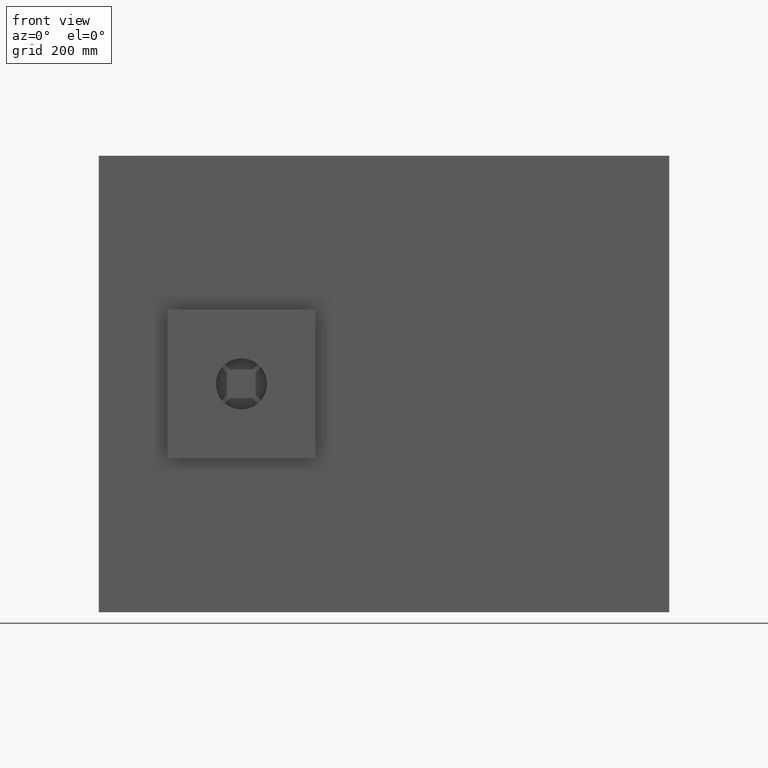
[diagram: clean part render]
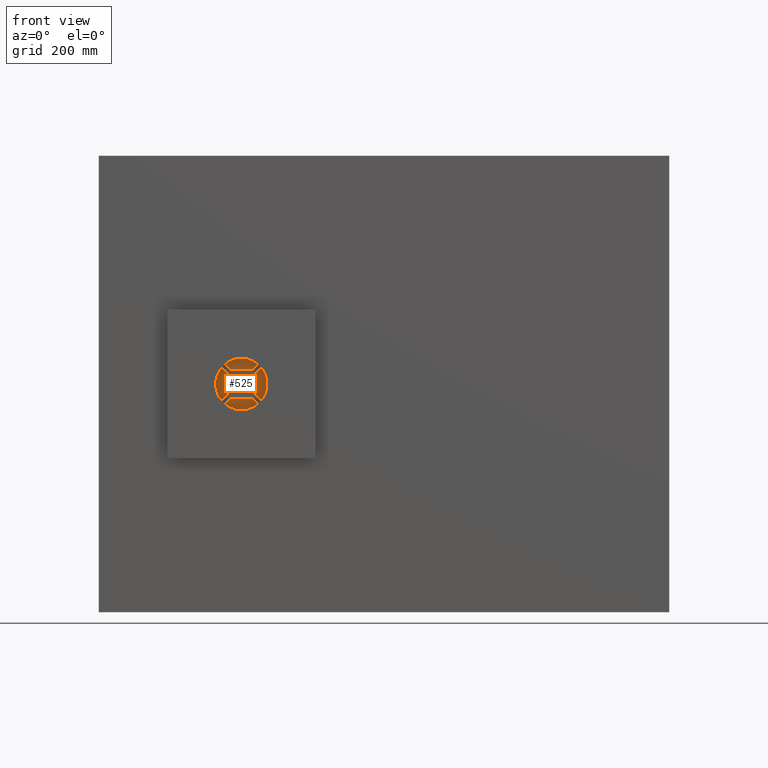
[diagram: same view with one face highlighted and labeled with its STEP entity id]
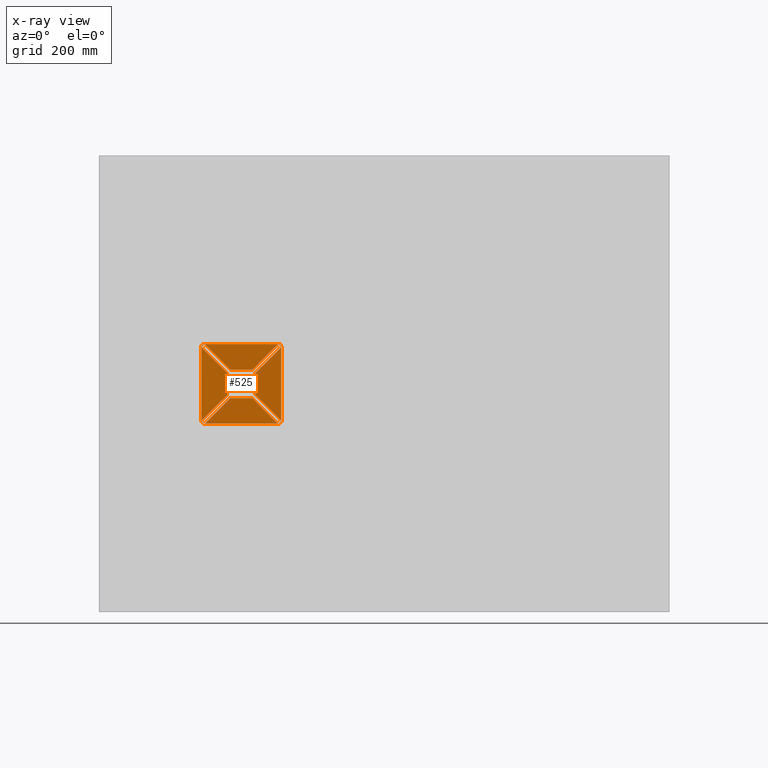
[diagram: x-ray of the same camera — body ghosted, the highlighted face saturated]
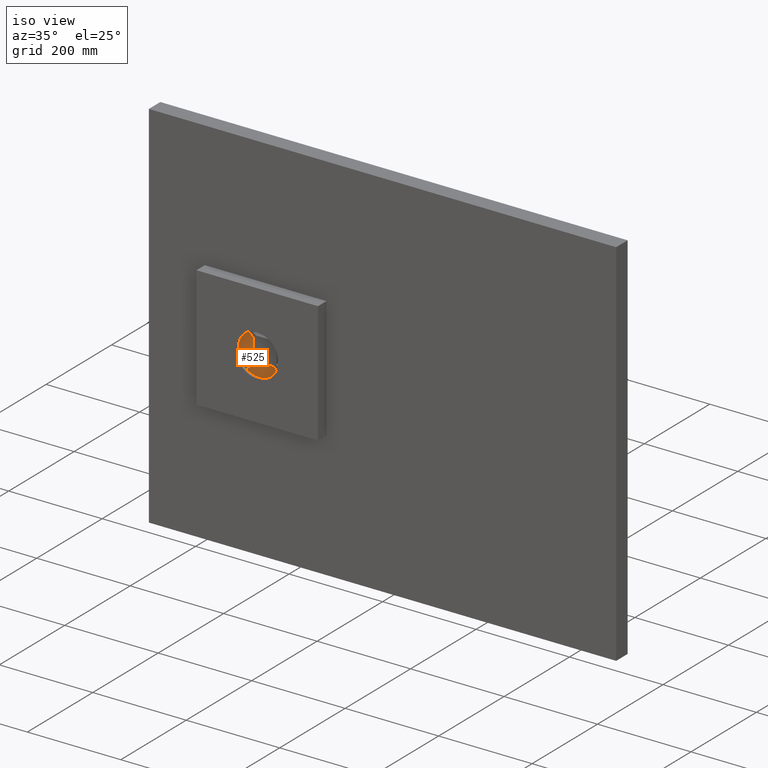
[diagram: same view with one face highlighted and labeled with its STEP entity id]
A machine part, front view. The second image highlights one B-rep face of the part: STEP entity #525.
The next image is the same camera in x-ray: the body ghosted, the highlighted face saturated — about 0% of this face is hidden behind the body in this view.
A second angle (iso view) of the same face is appended — the face is thin or edge-on in the first view.
In plain terms, the highlighted planar face has unit normal (0, -1, 0).
Its self-contained STEP definition (entity closure, byte-faithful):
#16 = CARTESIAN_POINT ( 'NONE',  ( -315.0000000000001700, 12.00000000000000000, 69.99999999999992900 ) ) ;
#33 = VECTOR ( 'NONE', #1922, 1000.000000000000000 ) ;
#40 = LINE ( 'NONE', #16, #46 ) ;
#46 = VECTOR ( 'NONE', #1867, 1000.000000000000000 ) ;
#56 = EDGE_CURVE ( 'NONE', #1213, #2385, #3199, .T. ) ;
#76 = AXIS2_PLACEMENT_3D ( 'NONE', #3222, #3214, #864 ) ;
#87 = CIRCLE ( 'NONE', #999, 3.999999999999976000 ) ;
#99 = VECTOR ( 'NONE', #1738, 1000.000000000000000 ) ;
#106 = DIRECTION ( 'NONE',  ( -1.000000000000000000, 0.0000000000000000000, -1.076178713649788700E-015 ) ) ;
#128 = CARTESIAN_POINT ( 'NONE',  ( -312.1715728752540100, 12.00000000000000000, -67.82842712474624100 ) ) ;
#141 = VERTEX_POINT ( 'NONE', #2898 ) ;
#147 = DIRECTION ( 'NONE',  ( 0.0000000000000000000, -0.0000000000000000000, -1.000000000000000000 ) ) ;
#148 = CARTESIAN_POINT ( 'NONE',  ( -269.3431457505078600, 12.00000000000000000, 25.00000000000005300 ) ) ;
#151 = CARTESIAN_POINT ( 'NONE',  ( -182.1715728752539300, 12.00000000000000000, -62.17157287525389400 ) ) ;
#167 = VERTEX_POINT ( 'NONE', #1769 ) ;
#186 = ORIENTED_EDGE ( 'NONE', *, *, #2902, .T. ) ;
#203 = CARTESIAN_POINT ( 'NONE',  ( -315.0000000000001700, 12.00000000000000000, -69.00000000000002800 ) ) ;
#208 = VECTOR ( 'NONE', #2277, 1000.000000000000000 ) ;
#211 = LINE ( 'NONE', #2690, #99 ) ;
#224 = CARTESIAN_POINT ( 'NONE',  ( -315.0000000000001700, 12.00000000000000000, -70.00000000000008500 ) ) ;
#247 = VERTEX_POINT ( 'NONE', #2056 ) ;
#270 = EDGE_CURVE ( 'NONE', #1105, #1536, #2037, .T. ) ;
#286 = VERTEX_POINT ( 'NONE', #3134 ) ;
#291 = VERTEX_POINT ( 'NONE', #3136 ) ;
#338 = LINE ( 'NONE', #1171, #719 ) ;
#348 = DIRECTION ( 'NONE',  ( 0.0000000000000000000, 1.000000000000000000, 0.0000000000000000000 ) ) ;
#364 = CARTESIAN_POINT ( 'NONE',  ( -225.0000000000001400, 12.00000000000000000, -19.34314575050772000 ) ) ;
#378 = CARTESIAN_POINT ( 'NONE',  ( -275.0000000000001700, 12.00000000000000000, 19.34314575050759200 ) ) ;
#474 = EDGE_CURVE ( 'NONE', #1536, #167, #1567, .T. ) ;
#493 = VECTOR ( 'NONE', #2561, 1000.000000000000000 ) ;
#525 = ADVANCED_FACE ( 'NONE', ( #2276, #1452 ), #2287, .T. ) ;
#532 = EDGE_CURVE ( 'NONE', #1144, #141, #1835, .T. ) ;
#561 = DIRECTION ( 'NONE',  ( 0.0000000000000000000, 0.0000000000000000000, 1.000000000000000000 ) ) ;
#568 = DIRECTION ( 'NONE',  ( 0.0000000000000000000, 1.000000000000000000, 0.0000000000000000000 ) ) ;
#572 = DIRECTION ( 'NONE',  ( -0.7071067811865483500, 0.0000000000000000000, -0.7071067811865465700 ) ) ;
#577 = CARTESIAN_POINT ( 'NONE',  ( -315.0000000000001700, 12.00000000000000000, -65.00000000000005700 ) ) ;
#581 = ORIENTED_EDGE ( 'NONE', *, *, #2866, .T. ) ;
#630 = CARTESIAN_POINT ( 'NONE',  ( -225.0000000000001400, 12.00000000000000000, -19.34314575050772000 ) ) ;
#661 = ORIENTED_EDGE ( 'NONE', *, *, #1816, .T. ) ;
#670 = ORIENTED_EDGE ( 'NONE', *, *, #270, .T. ) ;
#687 = CARTESIAN_POINT ( 'NONE',  ( -185.0000000000001400, 12.00000000000000000, -69.00000000000004300 ) ) ;
#690 = DIRECTION ( 'NONE',  ( 0.0000000000000000000, 1.000000000000000000, 0.0000000000000000000 ) ) ;
#695 = EDGE_LOOP ( 'NONE', ( #2174, #2156, #2897, #965, #881, #1425, #2820, #2484 ) ) ;
#710 = CARTESIAN_POINT ( 'NONE',  ( -320.0000000000001700, 12.00000000000000000, -65.00000000000008500 ) ) ;
#715 = DIRECTION ( 'NONE',  ( 0.0000000000000000000, 1.000000000000000000, 0.0000000000000000000 ) ) ;
#719 = VECTOR ( 'NONE', #867, 999.9999999999998900 ) ;
#720 = CARTESIAN_POINT ( 'NONE',  ( -185.0000000000001400, 12.00000000000000000, -65.00000000000005700 ) ) ;
#742 = AXIS2_PLACEMENT_3D ( 'NONE', #2201, #2229, #2196 ) ;
#792 = CARTESIAN_POINT ( 'NONE',  ( -185.0000000000001700, 12.00000000000000000, -65.00000000000007100 ) ) ;
#827 = DIRECTION ( 'NONE',  ( 0.0000000000000000000, 0.0000000000000000000, 1.000000000000000000 ) ) ;
#864 = DIRECTION ( 'NONE',  ( 0.0000000000000000000, 0.0000000000000000000, 1.000000000000000000 ) ) ;
#867 = DIRECTION ( 'NONE',  ( -0.7071067811865479100, 0.0000000000000000000, 0.7071067811865472400 ) ) ;
#881 = ORIENTED_EDGE ( 'NONE', *, *, #2395, .F. ) ;
#882 = CARTESIAN_POINT ( 'NONE',  ( -317.8284271247462700, 12.00000000000000000, -62.17157287525385100 ) ) ;
#918 = ORIENTED_EDGE ( 'NONE', *, *, #3246, .T. ) ;
#921 = DIRECTION ( 'NONE',  ( -0.7071067811865477900, 0.0000000000000000000, -0.7071067811865473500 ) ) ;
#940 = CARTESIAN_POINT ( 'NONE',  ( -269.3431457505078000, 12.00000000000000000, -25.00000000000012800 ) ) ;
#964 = EDGE_LOOP ( 'NONE', ( #661, #3202, #1043, #1038, #1181, #670, #2334, #186, #918, #1279, #1631, #1979, #1457, #1995, #2672, #1101, #2082, #581 ) ) ;
#965 = ORIENTED_EDGE ( 'NONE', *, *, #2639, .F. ) ;
#967 = VECTOR ( 'NONE', #2135, 1000.000000000000000 ) ;
#971 = VERTEX_POINT ( 'NONE', #2936 ) ;
#999 = AXIS2_PLACEMENT_3D ( 'NONE', #1036, #348, #827 ) ;
#1012 = EDGE_CURVE ( 'NONE', #247, #1144, #40, .T. ) ;
#1033 = VERTEX_POINT ( 'NONE', #940 ) ;
#1036 = CARTESIAN_POINT ( 'NONE',  ( -185.0000000000001100, 12.00000000000000000, 64.99999999999994300 ) ) ;
#1038 = ORIENTED_EDGE ( 'NONE', *, *, #1692, .T. ) ;
#1043 = ORIENTED_EDGE ( 'NONE', *, *, #1369, .T. ) ;
#1046 = EDGE_CURVE ( 'NONE', #2892, #2290, #211, .T. ) ;
#1056 = VECTOR ( 'NONE', #2106, 1000.000000000000000 ) ;
#1097 = CARTESIAN_POINT ( 'NONE',  ( -180.0000000000001700, 12.00000000000000000, 64.99999999999988600 ) ) ;
#1101 = ORIENTED_EDGE ( 'NONE', *, *, #1771, .T. ) ;
#1105 = VERTEX_POINT ( 'NONE', #128 ) ;
#1113 = DIRECTION ( 'NONE',  ( 0.0000000000000000000, 0.0000000000000000000, -1.000000000000000000 ) ) ;
#1128 = LINE ( 'NONE', #882, #2855 ) ;
#1144 = VERTEX_POINT ( 'NONE', #2108 ) ;
#1166 = DIRECTION ( 'NONE',  ( -1.000000000000000000, -0.0000000000000000000, 1.067522139062650400E-016 ) ) ;
#1171 = CARTESIAN_POINT ( 'NONE',  ( -187.8284271247463600, 12.00000000000000000, -67.82842712474621300 ) ) ;
#1172 = CIRCLE ( 'NONE', #2635, 5.000000000000004400 ) ;
#1181 = ORIENTED_EDGE ( 'NONE', *, *, #1970, .T. ) ;
#1183 = DIRECTION ( 'NONE',  ( 0.7071067811865479100, 0.0000000000000000000, -0.7071067811865471300 ) ) ;
#1205 = VERTEX_POINT ( 'NONE', #3034 ) ;
#1213 = VERTEX_POINT ( 'NONE', #1304 ) ;
#1218 = AXIS2_PLACEMENT_3D ( 'NONE', #2261, #2233, #147 ) ;
#1225 = DIRECTION ( 'NONE',  ( 0.7071067811865474600, 0.0000000000000000000, -0.7071067811865474600 ) ) ;
#1228 = DIRECTION ( 'NONE',  ( 0.0000000000000000000, 1.000000000000000000, 0.0000000000000000000 ) ) ;
#1232 = EDGE_CURVE ( 'NONE', #2793, #1205, #1459, .T. ) ;
#1248 = DIRECTION ( 'NONE',  ( 0.0000000000000000000, 0.0000000000000000000, 1.000000000000000000 ) ) ;
#1249 = CARTESIAN_POINT ( 'NONE',  ( -315.0000000000001100, 12.00000000000000000, 64.99999999999994300 ) ) ;
#1266 = LINE ( 'NONE', #630, #1412 ) ;
#1279 = ORIENTED_EDGE ( 'NONE', *, *, #2768, .T. ) ;
#1304 = CARTESIAN_POINT ( 'NONE',  ( -317.8284271247462700, 12.00000000000000000, 62.17157287525376600 ) ) ;
#1313 = DIRECTION ( 'NONE',  ( 0.0000000000000000000, 0.0000000000000000000, 1.000000000000000000 ) ) ;
#1369 = EDGE_CURVE ( 'NONE', #1205, #1886, #338, .T. ) ;
#1387 = CARTESIAN_POINT ( 'NONE',  ( -315.0000000000001700, 12.00000000000000000, 64.99999999999991500 ) ) ;
#1412 = VECTOR ( 'NONE', #1183, 1000.000000000000100 ) ;
#1415 = CARTESIAN_POINT ( 'NONE',  ( -180.0000000000001700, 12.00000000000000000, -65.00000000000007100 ) ) ;
#1425 = ORIENTED_EDGE ( 'NONE', *, *, #1908, .F. ) ;
#1452 = FACE_BOUND ( 'NONE', #964, .T. ) ;
#1457 = ORIENTED_EDGE ( 'NONE', *, *, #2221, .T. ) ;
#1459 = CIRCLE ( 'NONE', #2726, 3.999999999999989800 ) ;
#1536 = VERTEX_POINT ( 'NONE', #203 ) ;
#1567 = CIRCLE ( 'NONE', #2965, 3.999999999999976000 ) ;
#1578 = LINE ( 'NONE', #378, #1056 ) ;
#1631 = ORIENTED_EDGE ( 'NONE', *, *, #56, .T. ) ;
#1636 = CARTESIAN_POINT ( 'NONE',  ( -315.0000000000001700, 12.00000000000000000, -70.00000000000008500 ) ) ;
#1649 = CARTESIAN_POINT ( 'NONE',  ( -275.0000000000001700, 12.00000000000000000, -19.34314575050773400 ) ) ;
#1658 = CARTESIAN_POINT ( 'NONE',  ( -275.0000000000001700, 12.00000000000000000, -19.34314575050773400 ) ) ;
#1675 = VERTEX_POINT ( 'NONE', #148 ) ;
#1692 = EDGE_CURVE ( 'NONE', #1886, #1033, #3019, .T. ) ;
#1715 = VERTEX_POINT ( 'NONE', #1636 ) ;
#1727 = DIRECTION ( 'NONE',  ( 0.0000000000000000000, 0.0000000000000000000, 1.000000000000000000 ) ) ;
#1738 = DIRECTION ( 'NONE',  ( -0.0000000000000000000, -0.0000000000000000000, 1.000000000000000000 ) ) ;
#1748 = VECTOR ( 'NONE', #921, 1000.000000000000000 ) ;
#1750 = LINE ( 'NONE', #1097, #967 ) ;
#1764 = LINE ( 'NONE', #2676, #493 ) ;
#1769 = CARTESIAN_POINT ( 'NONE',  ( -317.8284271247462700, 12.00000000000000000, -62.17157287525384400 ) ) ;
#1771 = EDGE_CURVE ( 'NONE', #971, #2292, #3218, .T. ) ;
#1777 = VERTEX_POINT ( 'NONE', #2437 ) ;
#1799 = EDGE_CURVE ( 'NONE', #1715, #2892, #1172, .T. ) ;
#1816 = EDGE_CURVE ( 'NONE', #3093, #2793, #3046, .T. ) ;
#1835 = CIRCLE ( 'NONE', #742, 5.000000000000018700 ) ;
#1844 = LINE ( 'NONE', #3040, #1849 ) ;
#1849 = VECTOR ( 'NONE', #572, 1000.000000000000100 ) ;
#1867 = DIRECTION ( 'NONE',  ( 1.000000000000000000, 0.0000000000000000000, 0.0000000000000000000 ) ) ;
#1872 = EDGE_CURVE ( 'NONE', #291, #971, #87, .T. ) ;
#1886 = VERTEX_POINT ( 'NONE', #2627 ) ;
#1908 = EDGE_CURVE ( 'NONE', #141, #2617, #1750, .T. ) ;
#1919 = AXIS2_PLACEMENT_3D ( 'NONE', #792, #2266, #1113 ) ;
#1922 = DIRECTION ( 'NONE',  ( 0.0000000000000000000, 0.0000000000000000000, 1.000000000000000000 ) ) ;
#1939 = LINE ( 'NONE', #2346, #208 ) ;
#1970 = EDGE_CURVE ( 'NONE', #1033, #1105, #1844, .T. ) ;
#1979 = ORIENTED_EDGE ( 'NONE', *, *, #2608, .T. ) ;
#1995 = ORIENTED_EDGE ( 'NONE', *, *, #2958, .T. ) ;
#2037 = CIRCLE ( 'NONE', #76, 3.999999999999976000 ) ;
#2056 = CARTESIAN_POINT ( 'NONE',  ( -315.0000000000001700, 12.00000000000000000, 69.99999999999992900 ) ) ;
#2082 = ORIENTED_EDGE ( 'NONE', *, *, #2660, .T. ) ;
#2095 = VERTEX_POINT ( 'NONE', #2543 ) ;
#2106 = DIRECTION ( 'NONE',  ( -0.7071067811865470200, 0.0000000000000000000, 0.7071067811865481300 ) ) ;
#2108 = CARTESIAN_POINT ( 'NONE',  ( -185.0000000000001700, 12.00000000000000000, 69.99999999999992900 ) ) ;
#2113 = CIRCLE ( 'NONE', #2808, 5.000000000000004400 ) ;
#2129 = LINE ( 'NONE', #3234, #2222 ) ;
#2135 = DIRECTION ( 'NONE',  ( 0.0000000000000000000, 0.0000000000000000000, -1.000000000000000000 ) ) ;
#2156 = ORIENTED_EDGE ( 'NONE', *, *, #1046, .F. ) ;
#2174 = ORIENTED_EDGE ( 'NONE', *, *, #2178, .F. ) ;
#2178 = EDGE_CURVE ( 'NONE', #2290, #247, #2113, .T. ) ;
#2196 = DIRECTION ( 'NONE',  ( 0.0000000000000000000, 0.0000000000000000000, 1.000000000000000000 ) ) ;
#2198 = DIRECTION ( 'NONE',  ( 0.0000000000000000000, 1.000000000000000000, -0.0000000000000000000 ) ) ;
#2201 = CARTESIAN_POINT ( 'NONE',  ( -185.0000000000001700, 12.00000000000000000, 64.99999999999990100 ) ) ;
#2221 = EDGE_CURVE ( 'NONE', #1675, #2095, #2129, .T. ) ;
#2222 = VECTOR ( 'NONE', #2422, 1000.000000000000000 ) ;
#2227 = VECTOR ( 'NONE', #1225, 1000.000000000000100 ) ;
#2229 = DIRECTION ( 'NONE',  ( 0.0000000000000000000, 1.000000000000000000, 0.0000000000000000000 ) ) ;
#2232 = CARTESIAN_POINT ( 'NONE',  ( -320.0000000000001700, 12.00000000000000000, 64.99999999999991500 ) ) ;
#2233 = DIRECTION ( 'NONE',  ( 0.0000000000000000000, -1.000000000000000000, 0.0000000000000000000 ) ) ;
#2244 = CIRCLE ( 'NONE', #1919, 5.000000000000018700 ) ;
#2245 = CARTESIAN_POINT ( 'NONE',  ( -312.1715728752540100, 12.00000000000000000, 67.82842712474615600 ) ) ;
#2253 = VERTEX_POINT ( 'NONE', #1658 ) ;
#2254 = CARTESIAN_POINT ( 'NONE',  ( -182.1715728752539600, 12.00000000000000000, 62.17157287525376600 ) ) ;
#2261 = CARTESIAN_POINT ( 'NONE',  ( -315.0000000000001700, 12.00000000000000000, 64.99999999999991500 ) ) ;
#2266 = DIRECTION ( 'NONE',  ( 0.0000000000000000000, 1.000000000000000000, -0.0000000000000000000 ) ) ;
#2276 = FACE_OUTER_BOUND ( 'NONE', #695, .T. ) ;
#2277 = DIRECTION ( 'NONE',  ( -0.0000000000000000000, -0.0000000000000000000, -1.000000000000000000 ) ) ;
#2287 = PLANE ( 'NONE',  #1218 ) ;
#2290 = VERTEX_POINT ( 'NONE', #2232 ) ;
#2292 = VERTEX_POINT ( 'NONE', #2913 ) ;
#2308 = DIRECTION ( 'NONE',  ( 0.7071067811865474600, 0.0000000000000000000, 0.7071067811865476800 ) ) ;
#2323 = CARTESIAN_POINT ( 'NONE',  ( -185.0000000000001400, 12.00000000000000000, -65.00000000000005700 ) ) ;
#2334 = ORIENTED_EDGE ( 'NONE', *, *, #474, .T. ) ;
#2346 = CARTESIAN_POINT ( 'NONE',  ( -225.0000000000001400, 12.00000000000000000, -19.34314575050772000 ) ) ;
#2385 = VERTEX_POINT ( 'NONE', #3223 ) ;
#2395 = EDGE_CURVE ( 'NONE', #2617, #1777, #2244, .T. ) ;
#2422 = DIRECTION ( 'NONE',  ( 1.000000000000000000, 0.0000000000000000000, -7.174524757665249000E-016 ) ) ;
#2437 = CARTESIAN_POINT ( 'NONE',  ( -185.0000000000001700, 12.00000000000000000, -70.00000000000008500 ) ) ;
#2484 = ORIENTED_EDGE ( 'NONE', *, *, #1012, .F. ) ;
#2515 = LINE ( 'NONE', #1649, #33 ) ;
#2543 = CARTESIAN_POINT ( 'NONE',  ( -230.6568542494925700, 12.00000000000000000, 25.00000000000002500 ) ) ;
#2561 = DIRECTION ( 'NONE',  ( 0.7071067811865489100, 0.0000000000000000000, 0.7071067811865462400 ) ) ;
#2608 = EDGE_CURVE ( 'NONE', #2385, #1675, #3269, .T. ) ;
#2617 = VERTEX_POINT ( 'NONE', #1415 ) ;
#2627 = CARTESIAN_POINT ( 'NONE',  ( -230.6568542494925100, 12.00000000000000000, -25.00000000000008500 ) ) ;
#2635 = AXIS2_PLACEMENT_3D ( 'NONE', #3169, #2198, #3139 ) ;
#2637 = DIRECTION ( 'NONE',  ( 0.0000000000000000000, 1.000000000000000000, -0.0000000000000000000 ) ) ;
#2639 = EDGE_CURVE ( 'NONE', #1777, #1715, #2940, .T. ) ;
#2660 = EDGE_CURVE ( 'NONE', #2292, #2754, #1939, .T. ) ;
#2672 = ORIENTED_EDGE ( 'NONE', *, *, #1872, .T. ) ;
#2676 = CARTESIAN_POINT ( 'NONE',  ( -230.6568542494925700, 12.00000000000000000, 25.00000000000002500 ) ) ;
#2690 = CARTESIAN_POINT ( 'NONE',  ( -320.0000000000001700, 12.00000000000000000, 64.99999999999991500 ) ) ;
#2726 = AXIS2_PLACEMENT_3D ( 'NONE', #2323, #690, #1313 ) ;
#2754 = VERTEX_POINT ( 'NONE', #364 ) ;
#2768 = EDGE_CURVE ( 'NONE', #286, #1213, #1578, .T. ) ;
#2793 = VERTEX_POINT ( 'NONE', #687 ) ;
#2808 = AXIS2_PLACEMENT_3D ( 'NONE', #1387, #2637, #2949 ) ;
#2820 = ORIENTED_EDGE ( 'NONE', *, *, #532, .F. ) ;
#2855 = VECTOR ( 'NONE', #2308, 1000.000000000000000 ) ;
#2866 = EDGE_CURVE ( 'NONE', #2754, #3093, #1266, .T. ) ;
#2877 = CARTESIAN_POINT ( 'NONE',  ( -230.6568542494925100, 12.00000000000000000, -25.00000000000008500 ) ) ;
#2892 = VERTEX_POINT ( 'NONE', #710 ) ;
#2897 = ORIENTED_EDGE ( 'NONE', *, *, #1799, .F. ) ;
#2898 = CARTESIAN_POINT ( 'NONE',  ( -180.0000000000001700, 12.00000000000000000, 64.99999999999988600 ) ) ;
#2902 = EDGE_CURVE ( 'NONE', #167, #2253, #1128, .T. ) ;
#2913 = CARTESIAN_POINT ( 'NONE',  ( -225.0000000000001400, 12.00000000000000000, 19.34314575050760600 ) ) ;
#2936 = CARTESIAN_POINT ( 'NONE',  ( -182.1715728752539600, 12.00000000000000000, 62.17157287525375900 ) ) ;
#2940 = LINE ( 'NONE', #224, #3116 ) ;
#2949 = DIRECTION ( 'NONE',  ( 0.0000000000000000000, 0.0000000000000000000, -1.000000000000000000 ) ) ;
#2958 = EDGE_CURVE ( 'NONE', #2095, #291, #1764, .T. ) ;
#2965 = AXIS2_PLACEMENT_3D ( 'NONE', #577, #568, #561 ) ;
#3019 = LINE ( 'NONE', #2877, #3037 ) ;
#3034 = CARTESIAN_POINT ( 'NONE',  ( -187.8284271247463600, 12.00000000000000000, -67.82842712474621300 ) ) ;
#3037 = VECTOR ( 'NONE', #106, 1000.000000000000000 ) ;
#3040 = CARTESIAN_POINT ( 'NONE',  ( -269.3431457505078000, 12.00000000000000000, -25.00000000000012800 ) ) ;
#3046 = CIRCLE ( 'NONE', #3102, 3.999999999999989800 ) ;
#3093 = VERTEX_POINT ( 'NONE', #151 ) ;
#3102 = AXIS2_PLACEMENT_3D ( 'NONE', #720, #715, #1727 ) ;
#3116 = VECTOR ( 'NONE', #1166, 1000.000000000000000 ) ;
#3134 = CARTESIAN_POINT ( 'NONE',  ( -275.0000000000001700, 12.00000000000000000, 19.34314575050759200 ) ) ;
#3135 = AXIS2_PLACEMENT_3D ( 'NONE', #1249, #1228, #1248 ) ;
#3136 = CARTESIAN_POINT ( 'NONE',  ( -187.8284271247463000, 12.00000000000000000, 67.82842712474612800 ) ) ;
#3139 = DIRECTION ( 'NONE',  ( 0.0000000000000000000, 0.0000000000000000000, -1.000000000000000000 ) ) ;
#3169 = CARTESIAN_POINT ( 'NONE',  ( -315.0000000000001700, 12.00000000000000000, -65.00000000000008500 ) ) ;
#3199 = CIRCLE ( 'NONE', #3135, 3.999999999999976000 ) ;
#3202 = ORIENTED_EDGE ( 'NONE', *, *, #1232, .T. ) ;
#3214 = DIRECTION ( 'NONE',  ( 0.0000000000000000000, 1.000000000000000000, 0.0000000000000000000 ) ) ;
#3218 = LINE ( 'NONE', #2254, #1748 ) ;
#3222 = CARTESIAN_POINT ( 'NONE',  ( -315.0000000000001700, 12.00000000000000000, -65.00000000000005700 ) ) ;
#3223 = CARTESIAN_POINT ( 'NONE',  ( -312.1715728752540100, 12.00000000000000000, 67.82842712474617000 ) ) ;
#3234 = CARTESIAN_POINT ( 'NONE',  ( -269.3431457505078600, 12.00000000000000000, 25.00000000000005300 ) ) ;
#3246 = EDGE_CURVE ( 'NONE', #2253, #286, #2515, .T. ) ;
#3269 = LINE ( 'NONE', #2245, #2227 ) ;